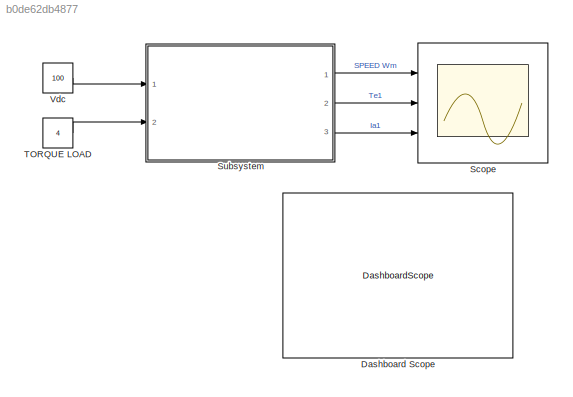
MODEL slx_b0de62db4877
KIND model
CONFIG AbsTol = auto
CONFIG EnableMultiTasking = off
CONFIG FixedStep = auto
CONFIG MaxStep = auto
CONFIG MinStep = auto
CONFIG RelTol = 1e-3
CONFIG SampleTimeConstraint = Unconstrained
CONFIG SolverName = VariableStepAuto
CONFIG StartTime = 0.0
CONFIG StopTime = 10.0
BLOCK [DashboardScope] Dashboard Scope
BLOCK [Scope] Scope
  Floating = off
  NumInputPorts = 3
  Ports = [3]
  ScopeSpecificationString = Simulink.scopes.TimeScopeBlockCfg('CurrentConfiguration', extmgr.ConfigurationSet(extmgr.Configuration('Core','General UI',true),extmgr.Configuration('Core','Source UI',true),extmgr.Configuration('Sources','WiredSimulink',true),extmgr.Configuration('Visuals','Time Domain',true,'SerializedDisplays',{struct('MinYLimReal','-24.77883','MaxYLimReal','114.34273','YLabelReal','','MinYLimMag','0.00000','M...<+2914ch>
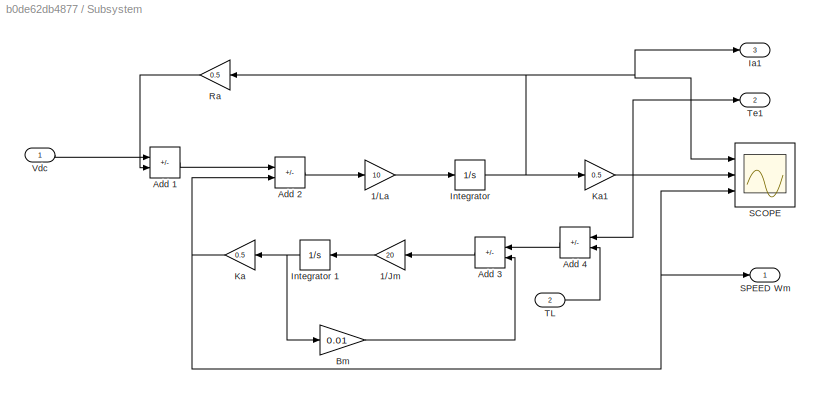
BLOCK [SubSystem] Subsystem
  Ports = [2, 3]
  RequestExecContextInheritance = off
BLOCK [Gain] Subsystem/1//Jm
  Gain = 20
  NameLocation = top
BLOCK [Gain] Subsystem/1//La
  Gain = 10
BLOCK [Sum] Subsystem/Add 1
  IconShape = rectangular
  Inputs = +-
  Ports = [2, 1]
BLOCK [Sum] Subsystem/Add 2
  IconShape = rectangular
  Inputs = +-
  Ports = [2, 1]
BLOCK [Sum] Subsystem/Add 3
  IconShape = rectangular
  Inputs = +-
  NameLocation = top
  Ports = [2, 1]
BLOCK [Sum] Subsystem/Add 4
  IconShape = rectangular
  Inputs = +-
  NameLocation = top
  Ports = [2, 1]
BLOCK [Gain] Subsystem/Bm
  Gain = 0.01
BLOCK [Outport] Subsystem/Ia1
  Port = 3
BLOCK [Integrator] Subsystem/Integrator 
  Ports = [1, 1]
BLOCK [Integrator] Subsystem/Integrator 1
  NameLocation = top
  Ports = [1, 1]
BLOCK [Gain] Subsystem/Ka
  Gain = 0.5
  NameLocation = top
BLOCK [Gain] Subsystem/Ka1
  Gain = 0.5
BLOCK [Gain] Subsystem/Ra
  Gain = 0.5
  NameLocation = top
BLOCK [Scope] Subsystem/SCOPE
  Floating = off
  NumInputPorts = 3
  Ports = [3]
  ScopeSpecificationString = Simulink.scopes.TimeScopeBlockCfg('CurrentConfiguration', extmgr.ConfigurationSet(extmgr.Configuration('Core','General UI',true),extmgr.Configuration('Core','Source UI',true),extmgr.Configuration('Sources','WiredSimulink',true,'DataLoggingVariableName','ScopeData2'),extmgr.Configuration('Visuals','Time Domain',true,'SerializedDisplays',{struct('MinYLimReal','-1.00000','MaxYLimReal','1.00000','YLab...<+1385ch>
BLOCK [Outport] Subsystem/SPEED Wm
BLOCK [Inport] Subsystem/TL
  Port = 2
BLOCK [Outport] Subsystem/Te1
  Port = 2
BLOCK [Inport] Subsystem/Vdc
BLOCK [Constant] TORQUE LOAD
  Value = 4
BLOCK [Constant] Vdc
  Value = 100
LINE Subsystem/1//Jm:1 -> Subsystem/Integrator 1:1
LINE Subsystem/1//La:1 -> Subsystem/Integrator :1
LINE Subsystem/Add 1:1 -> Subsystem/Add 2:1
LINE Subsystem/Add 2:1 -> Subsystem/1//La:1
LINE Subsystem/Add 3:1 -> Subsystem/1//Jm:1
LINE Subsystem/Add 4:1 -> Subsystem/Add 3:1
LINE Subsystem/Bm:1 -> Subsystem/Add 3:2
NET Subsystem/Integrator 1:1 -> Subsystem/Bm:1, Subsystem/Ka:1
NET Subsystem/Integrator :1 -> Subsystem/Ia1:1, Subsystem/Ka1:1, Subsystem/Ra:1, Subsystem/SCOPE:1
NET Subsystem/Ka1:1 -> Subsystem/Add 4:1, Subsystem/SCOPE:2, Subsystem/Te1:1
NET Subsystem/Ka:1 -> Subsystem/Add 2:2, Subsystem/SCOPE:3, Subsystem/SPEED Wm:1
LINE Subsystem/Ra:1 -> Subsystem/Add 1:2
LINE Subsystem/TL:1 -> Subsystem/Add 4:2
LINE Subsystem/Vdc:1 -> Subsystem/Add 1:1
LINE Subsystem:1 -> Scope:1
LINE Subsystem:2 -> Scope:2
LINE Subsystem:3 -> Scope:3
LINE TORQUE LOAD:1 -> Subsystem:2
LINE Vdc:1 -> Subsystem:1
note: NET lines group one-source signal fan-out (src -> all destinations, sorted); 1:1 wires keep LINE
